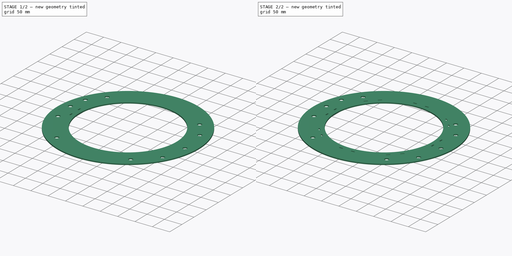
[diagram: build sequence overview — one tinted view per stage of 2, left to right]
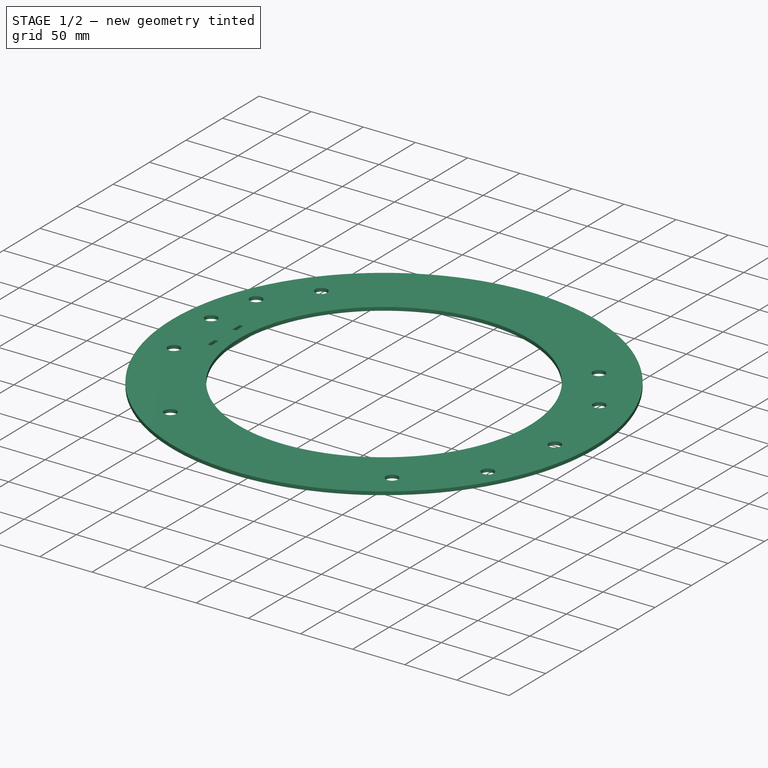
[diagram: stage 1 of 2 — iso view after this stage's code; geometry added in this stage tinted green]
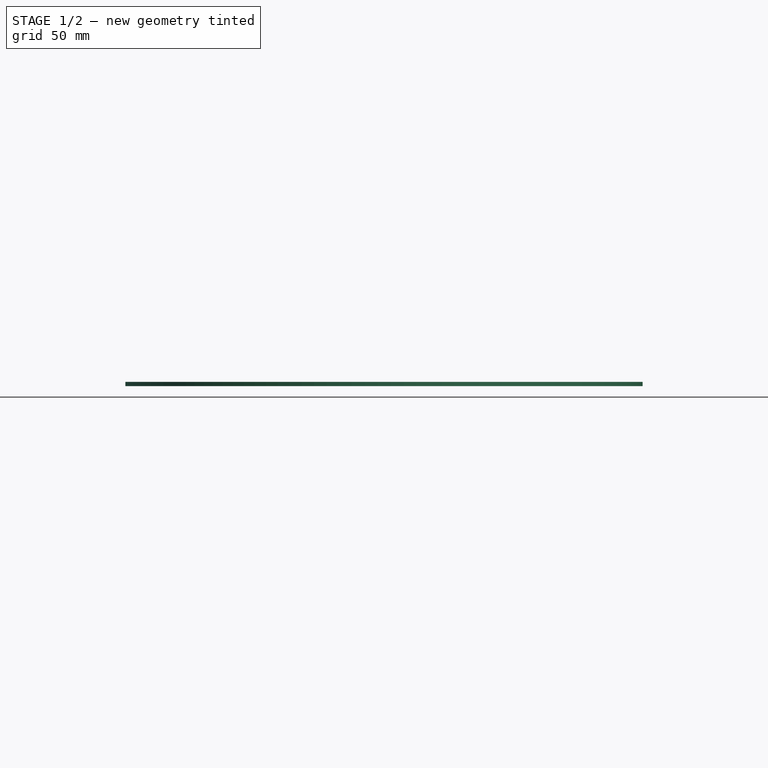
[diagram: stage 1 of 2 — front view after this stage's code; geometry added in this stage tinted green]
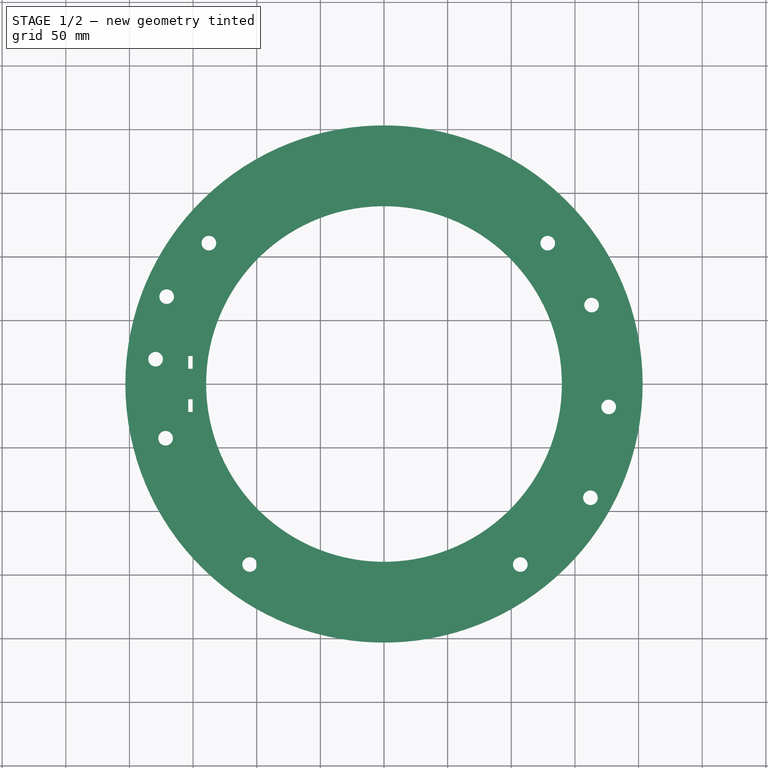
[diagram: stage 1 of 2 — top view after this stage's code; geometry added in this stage tinted green]
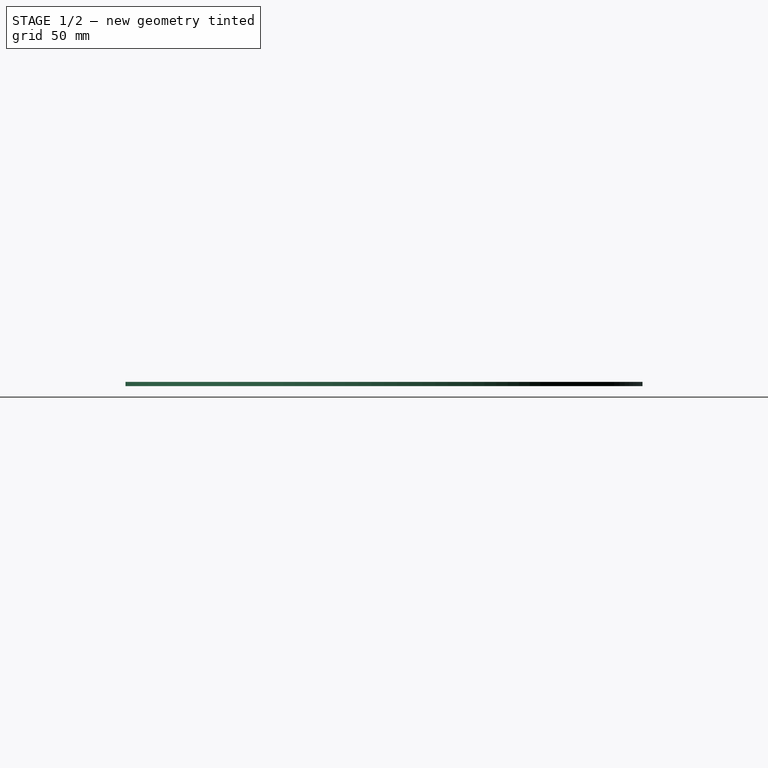
[diagram: stage 1 of 2 — right view after this stage's code; geometry added in this stage tinted green]
FCSTD DOCUMENT  (FreeCAD 0.21R33771 (Git))
Label: SF_TY755_TRANS_FACEPLATE
License: All rights reserved
LicenseURL: http://en.wikipedia.org/wiki/All_rights_reserved
objects: Sketcher::SketchObject×4, PartDesign::CoordinateSystem×2, Part::Feature×1, PartDesign::Pad×1, PartDesign::Pocket×1, PartDesign::PolarPattern×1, PartDesign::Plane×1, PartDesign::Body×1, PartDesign::Line×1, App::Part×1
note: 15 computed .brp shape members not serialized (recipe doc carries the construction recipe); baked Part::Feature solids carry a one-line shape summary decoded from their .brp

FEATURE [Part::Feature] Part__Feature126  label="plate33"
  shape: bbox 408 x 387 x 80.02 mm, 236 faces, 3 solids (baked)
FEATURE [Sketcher::SketchObject] Sketch  label="IMPORTED_BP"
  FullyConstrained = true
  MapMode = 2
  Support = -> [XY_Plane]
  sketch-geometry (10):
    g0: Circle CenterX=-137.568 CenterY=110.686 CenterZ=0 NormalX=0 NormalY=0 NormalZ=1 AngleXU=0 Radius=5.75
    g1: Circle CenterX=-170.744 CenterY=68.6485 CenterZ=0 NormalX=0 NormalY=0 NormalZ=1 AngleXU=0 Radius=5.75
    g2: Circle CenterX=-179.453 CenterY=19.5185 CenterZ=0 NormalX=0 NormalY=0 NormalZ=1 AngleXU=0 Radius=5.75
    g3: Circle CenterX=-171.59 CenterY=-42.6229 CenterZ=0 NormalX=0 NormalY=0 NormalZ=1 AngleXU=0 Radius=5.75
    g4: Circle CenterX=-105.528 CenterY=-141.847 CenterZ=0 NormalX=0 NormalY=0 NormalZ=1 AngleXU=0 Radius=5.75
    g5: Circle CenterX=107.083 CenterY=-141.845 CenterZ=0 NormalX=0 NormalY=0 NormalZ=1 AngleXU=0 Radius=5.75
    g6: Circle CenterX=162.173 CenterY=-89.3634 CenterZ=0 NormalX=0 NormalY=0 NormalZ=1 AngleXU=0 Radius=5.75
    g7: Circle CenterX=176.51 CenterY=-18.0151 CenterZ=0 NormalX=0 NormalY=0 NormalZ=1 AngleXU=0 Radius=5.75
    g8: Circle CenterX=163.102 CenterY=62.0411 CenterZ=0 NormalX=0 NormalY=0 NormalZ=1 AngleXU=0 Radius=5.75
    g9: Circle CenterX=128.64 CenterY=110.662 CenterZ=0 NormalX=0 NormalY=0 NormalZ=1 AngleXU=0 Radius=5.75
  constraints (20):
    c: Diameter(g0) = 11.5
    c: Equal(g0,g1)
    c: Equal(g1,g2)
    c: Equal(g2,g3)
    c: Equal(g3,g4)
    c: Equal(g4,g5)
    c: Equal(g5,g6)
    c: Equal(g6,g7)
    c: Equal(g7,g8)
    c: Equal(g8,g9)
    c: Block(g6)
    c: Block(g0)
    c: Block(g1)
    c: Block(g2)
    c: Block(g3)
    c: Block(g4)
    c: Block(g5)
    c: Block(g7)
    c: Block(g8)
    c: Block(g9)
FEATURE [Sketcher::SketchObject] Sketch001  label="SF_Trans_BP"
  FullyConstrained = false
  MapMode = 5
  Support = -> [XY_Plane]
  expr: Constraints[2] = 16 in
  expr: Constraints[33] = 3.5 * 3.5
  expr: Constraints[9] = Sketch.Constraints[0]
  sketch-geometry (16):
    g0: Circle CenterX=0 CenterY=0 CenterZ=0 NormalX=0 NormalY=0 NormalZ=1 AngleXU=0 Radius=127
    g1: Circle CenterX=0 CenterY=0 CenterZ=0 NormalX=0 NormalY=0 NormalZ=1 AngleXU=0 Radius=203.2
    g2: Circle CenterX=0 CenterY=0 CenterZ=0 NormalX=0 NormalY=0 NormalZ=1 AngleXU=0 Radius=139.75
    g3: LineSegment StartX=-203.2 StartY=0 StartZ=0 EndX=-148.2 EndY=0 EndZ=0
    g4: LineSegment StartX=-148.2 StartY=0 StartZ=0 EndX=-139.75 EndY=0 EndZ=0
    g5: Circle CenterX=-137.568 CenterY=110.686 CenterZ=0 NormalX=0 NormalY=0 NormalZ=1 AngleXU=0 Radius=5.75
    g6: Circle CenterX=-170.744 CenterY=68.6485 CenterZ=0 NormalX=0 NormalY=0 NormalZ=1 AngleXU=0 Radius=5.75
    g7: Circle CenterX=-179.453 CenterY=19.5185 CenterZ=0 NormalX=0 NormalY=0 NormalZ=1 AngleXU=0 Radius=5.75
    g8: Circle CenterX=-171.59 CenterY=-42.6229 CenterZ=0 NormalX=0 NormalY=0 NormalZ=1 AngleXU=0 Radius=5.75
    g9: Circle CenterX=-105.528 CenterY=-141.847 CenterZ=0 NormalX=0 NormalY=0 NormalZ=1 AngleXU=0 Radius=5.75
    g10: Circle CenterX=107.083 CenterY=-141.845 CenterZ=0 NormalX=0 NormalY=0 NormalZ=1 AngleXU=0 Radius=5.75
    g11: Circle CenterX=162.173 CenterY=-89.3634 CenterZ=0 NormalX=0 NormalY=0 NormalZ=1 AngleXU=0 Radius=5.75
    g12: Circle CenterX=176.51 CenterY=-18.0151 CenterZ=0 NormalX=0 NormalY=0 NormalZ=1 AngleXU=0 Radius=5.75
    g13: Circle CenterX=163.102 CenterY=62.0411 CenterZ=0 NormalX=0 NormalY=0 NormalZ=1 AngleXU=0 Radius=5.75
    g14: Circle CenterX=128.64 CenterY=110.662 CenterZ=0 NormalX=0 NormalY=0 NormalZ=1 AngleXU=0 Radius=5.75
    g15: GeomPoint X=-152 Y=0 Z=0
  constraints (34):
    c: Coincident(g0,g-1)
    c: Diameter(g0) = 254
    c: Diameter(g1) = 406.4
    c: Coincident(g1,g0)
    c: PointOnObject(g3,g1)
    c: PointOnObject(g3,g-1)
    c: DistanceX(g3,g3) = 55
    c: Coincident(g4,g3)
    c: Horizontal(g4)
    c: Diameter(g5) = 11.5
    c: Equal(g5,g6)
    c: Equal(g6,g7)
    c: Equal(g7,g8)
    c: Equal(g8,g9)
    c: Equal(g9,g10)
    c: Equal(g10,g11)
    c: Equal(g11,g12)
    c: Equal(g12,g13)
    c: Equal(g13,g14)
    c: Block(g11)
    c: Block(g5)
    c: Block(g6)
    c: Block(g7)
    c: Block(g8)
    c: Block(g9)
    c: Block(g10)
    c: Block(g12)
    c: Block(g13)
    c: Block(g14)
    c: DistanceX(g15,g1) = 152  'TabRadialPos'
    c: PointOnObject(g4,g2)
    c: PointOnObject(g3,g-1)
    c: Coincident(g2,g1)
    c: DistanceX(g15,g4) = 12.25
FEATURE [PartDesign::Pad] Pad
  Direction = (0,0,1)
  Length = 3.25
  Length2 = 10
  Profile = -> Sketch001
  ReferenceAxis = -> Sketch001 [N_Axis]
  Type = 0
  expr: Length = 3.25
FEATURE [PartDesign::CoordinateSystem] LCS_1
  AttacherType = Attacher::AttachEngine3D
  MapMode = 5
  Support = -> [XY_Plane]
FEATURE [Sketcher::SketchObject] Sketch002  label="TabSlotsBase"
  FullyConstrained = true
  MapMode = 5
  Support = -> [XY_Plane]
  expr: .Constraints.TRP = Sketch001.Constraints.TabRadialPos
  sketch-geometry (13):
    g0: LineSegment StartX=0 StartY=0 StartZ=0 EndX=-152 EndY=0 EndZ=0
    g1: LineSegment StartX=-152 StartY=0 StartZ=0 EndX=-152 EndY=17 EndZ=0
    g2: LineSegment StartX=-152 StartY=0 StartZ=0 EndX=-152 EndY=-17 EndZ=0
    g3: LineSegment StartX=-150.25 StartY=12 StartZ=0 EndX=-150.25 EndY=22 EndZ=0
    g4: LineSegment StartX=-150.25 StartY=22 StartZ=0 EndX=-153.75 EndY=22 EndZ=0
    g5: LineSegment StartX=-153.75 StartY=22 StartZ=0 EndX=-153.75 EndY=12 EndZ=0
    g6: LineSegment StartX=-153.75 StartY=12 StartZ=0 EndX=-150.25 EndY=12 EndZ=0
    g7: GeomPoint X=-152 Y=17 Z=0
    g8: LineSegment StartX=-150.25 StartY=-12 StartZ=0 EndX=-150.25 EndY=-22 EndZ=0
    g9: LineSegment StartX=-150.25 StartY=-22 StartZ=0 EndX=-153.75 EndY=-22 EndZ=0
    g10: LineSegment StartX=-153.75 StartY=-22 StartZ=0 EndX=-153.75 EndY=-12 EndZ=0
    g11: LineSegment StartX=-153.75 StartY=-12 StartZ=0 EndX=-150.25 EndY=-12 EndZ=0
    g12: GeomPoint X=-152 Y=-17 Z=0
  constraints (33):
    c: Coincident(g0,g-1)
    c: PointOnObject(g0,g-1)
    c: DistanceX(g0,g0) = 152  'TRP'
    c: Coincident(g1,g0)
    c: Vertical(g1)
    c: Coincident(g2,g0)
    c: Vertical(g2)
    c: DistanceY(g1,g1) = 17  'TabCntrOffset'
    c: Equal(g2,g1)
    c: Coincident(g3,g4)
    c: Coincident(g4,g5)
    c: Coincident(g5,g6)
    c: Coincident(g6,g3)
    c: Horizontal(g4)
    c: Horizontal(g6)
    c: Vertical(g3)
    c: Vertical(g5)
    c: Symmetric(g4,g3,g7)
    c: Coincident(g7,g1)
    c: Coincident(g8,g9)
    c: Coincident(g9,g10)
    c: Coincident(g10,g11)
    c: Coincident(g11,g8)
    c: Horizontal(g9)
    c: Horizontal(g11)
    c: Vertical(g8)
    c: Vertical(g10)
    c: Symmetric(g9,g8,g12)
    c: Coincident(g12,g2)
    c: Equal(g5,g10)
    c: Equal(g4,g11)
    c: DistanceY(g5,g5) = 10  'TabLength'
    c: DistanceX(g4,g4) = 3.5  'ThicknessClearance'
FEATURE [PartDesign::Pocket] Pocket  label="TabSlotBase"
  BaseFeature = -> Pad
  Direction = (0,0,-1)
  Length = 5
  Length2 = 5
  Midplane = true
  Profile = -> Sketch002
  ReferenceAxis = -> Sketch002 [N_Axis]
  Type = 1
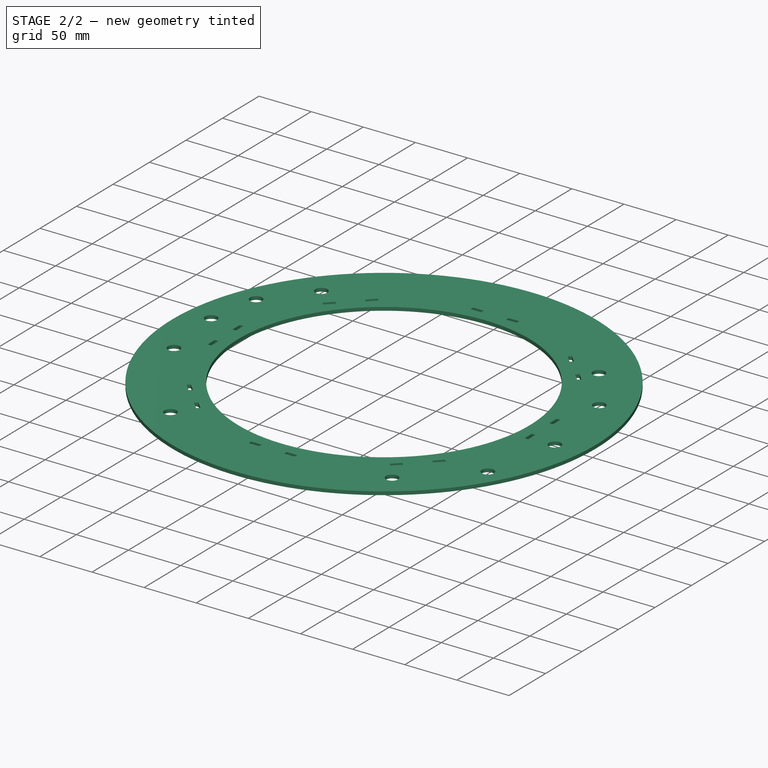
[diagram: stage 2 of 2 — iso view after this stage's code; geometry added in this stage tinted green]
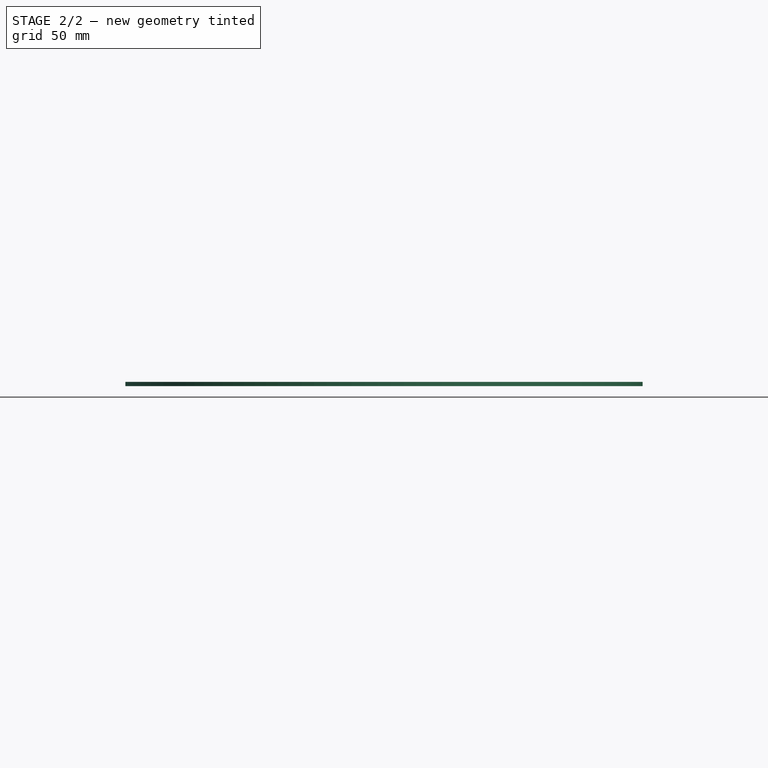
[diagram: stage 2 of 2 — front view after this stage's code; geometry added in this stage tinted green]
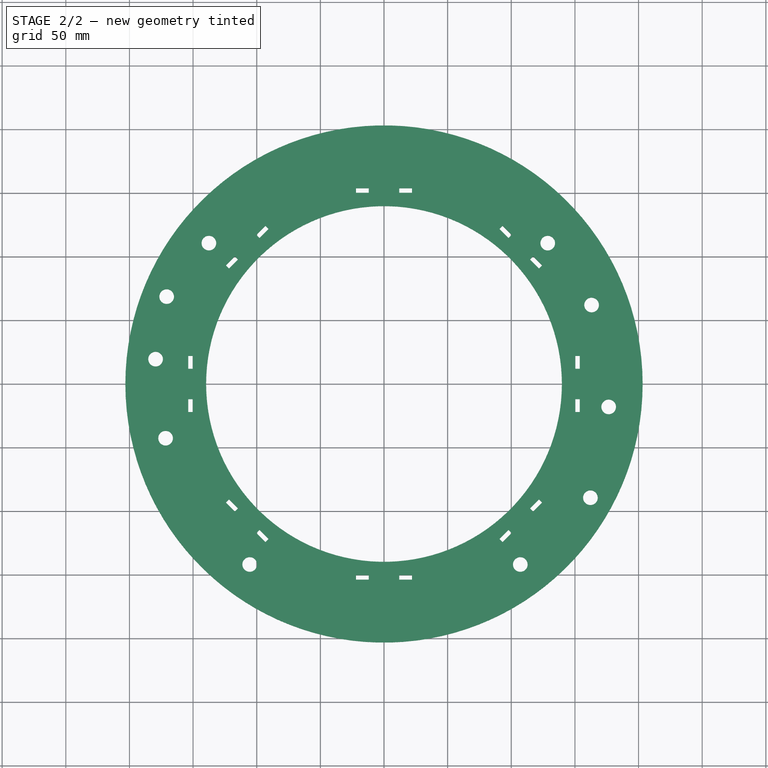
[diagram: stage 2 of 2 — top view after this stage's code; geometry added in this stage tinted green]
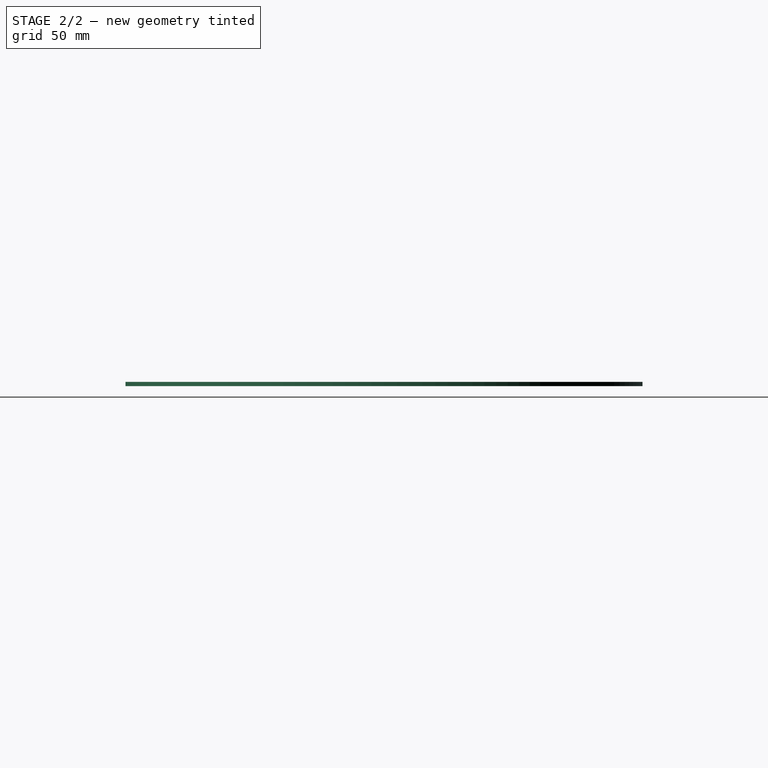
[diagram: stage 2 of 2 — right view after this stage's code; geometry added in this stage tinted green]
FEATURE [PartDesign::PolarPattern] PolarPattern  label="TabSlotPattern"
  Angle = 360
  Axis = -> Sketch002 [N_Axis]
  BaseFeature = -> Pocket
  Occurrences = 8
  Originals = -> [Pocket]
FEATURE [PartDesign::CoordinateSystem] LCS_Origin
  AttacherType = Attacher::AttachEngine3D
  MapMode = 2
  Support = -> [X_Axis001]
FEATURE [PartDesign::Plane] TXFP_SpacerSide
  Length = 100
  MapMode = 5
  Placement = pos=(0,0,0) rot=(1,0,0;3.14159rad)
  ResizeMode = 1
  Support = -> [PolarPattern]
  Width = 100
FEATURE [Sketcher::SketchObject] TabLCS
  FullyConstrained = true
  MapMode = 5
  Support = -> [XY_Plane]
  expr: .Constraints.TRP = Sketch002.Constraints.TRP
  expr: .Constraints.TabCntrOffset = Sketch002.Constraints.TabCntrOffset
  expr: .Constraints.TabLength = Sketch002.Constraints.TabLength
  expr: .Constraints.ThicknessClearance = Sketch002.Constraints.ThicknessClearance
  sketch-geometry (13):
    g0: LineSegment StartX=0 StartY=0 StartZ=0 EndX=-152 EndY=0 EndZ=0
    g1: LineSegment StartX=-152 StartY=0 StartZ=0 EndX=-152 EndY=17 EndZ=0
    g2: LineSegment StartX=-152 StartY=0 StartZ=0 EndX=-152 EndY=-17 EndZ=0
    g3: LineSegment StartX=-150.25 StartY=12 StartZ=0 EndX=-150.25 EndY=22 EndZ=0
    g4: LineSegment StartX=-150.25 StartY=22 StartZ=0 EndX=-153.75 EndY=22 EndZ=0
    g5: LineSegment StartX=-153.75 StartY=22 StartZ=0 EndX=-153.75 EndY=12 EndZ=0
    g6: LineSegment StartX=-153.75 StartY=12 StartZ=0 EndX=-150.25 EndY=12 EndZ=0
    g7: GeomPoint X=-152 Y=17 Z=0
    g8: LineSegment StartX=-150.25 StartY=-12 StartZ=0 EndX=-150.25 EndY=-22 EndZ=0
    g9: LineSegment StartX=-150.25 StartY=-22 StartZ=0 EndX=-153.75 EndY=-22 EndZ=0
    g10: LineSegment StartX=-153.75 StartY=-22 StartZ=0 EndX=-153.75 EndY=-12 EndZ=0
    g11: LineSegment StartX=-153.75 StartY=-12 StartZ=0 EndX=-150.25 EndY=-12 EndZ=0
    g12: GeomPoint X=-152 Y=-17 Z=0
  constraints (33):
    c: Coincident(g0,g-1)
    c: PointOnObject(g0,g-1)
    c: DistanceX(g0,g0) = 152  'TRP'
    c: Coincident(g1,g0)
    c: Vertical(g1)
    c: Coincident(g2,g0)
    c: Vertical(g2)
    c: DistanceY(g1,g1) = 17  'TabCntrOffset'
    c: Equal(g2,g1)
    c: Coincident(g3,g4)
    c: Coincident(g4,g5)
    c: Coincident(g5,g6)
    c: Coincident(g6,g3)
    c: Horizontal(g4)
    c: Horizontal(g6)
    c: Vertical(g3)
    c: Vertical(g5)
    c: Symmetric(g4,g3,g7)
    c: Coincident(g7,g1)
    c: Coincident(g8,g9)
    c: Coincident(g9,g10)
    c: Coincident(g10,g11)
    c: Coincident(g11,g8)
    c: Horizontal(g9)
    c: Horizontal(g11)
    c: Vertical(g8)
    c: Vertical(g10)
    c: Symmetric(g9,g8,g12)
    c: Coincident(g12,g2)
    c: Equal(g5,g10)
    c: Equal(g4,g11)
    c: DistanceY(g5,g5) = 10  'TabLength'
    c: DistanceX(g4,g4) = 3.5  'ThicknessClearance'
FEATURE [PartDesign::Body] Body  label="TX_Faceplate"
  Group = -> [Sketch,Sketch001,Pad,LCS_1,Sketch002,Pocket,PolarPattern,TabLCS]
  Origin = -> Origin
  Tip = -> PolarPattern
FEATURE [PartDesign::Line] TabSlotCL
  AttacherType = Attacher::AttachEngineLine
  Length = 200
  MapMode = 46
  Placement = pos=(-152,17,0) rot=(1,0,0;3.14159rad)
  ResizeMode = 1
  Support = -> [TabLCS,PolarPattern]
FEATURE [App::Part] TXFP
  Group = -> [LCS_Origin,Body,TXFP_SpacerSide,TabSlotCL]
  Origin = -> Origin001
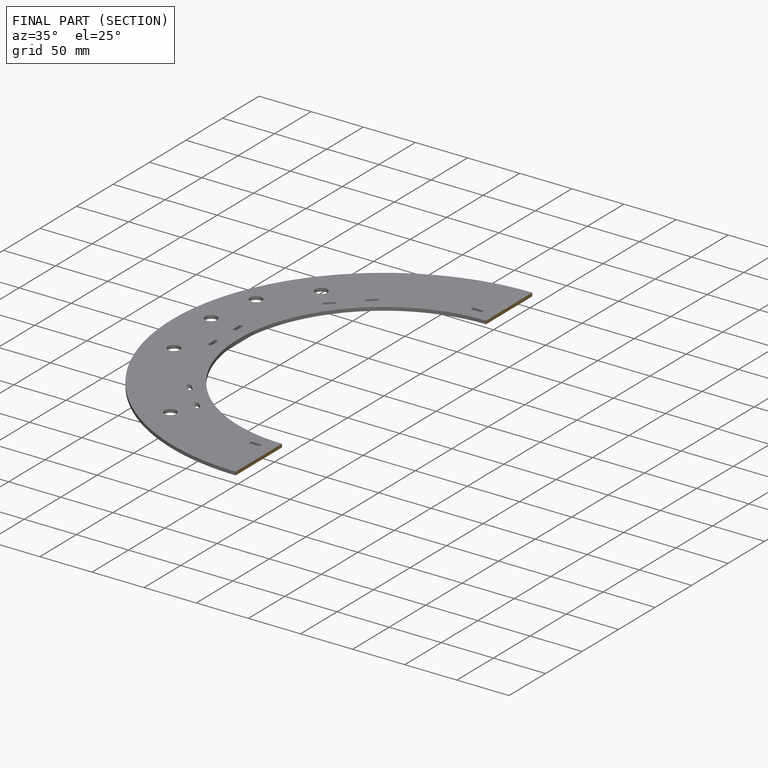
[diagram: finished part — half-section view (interior)]
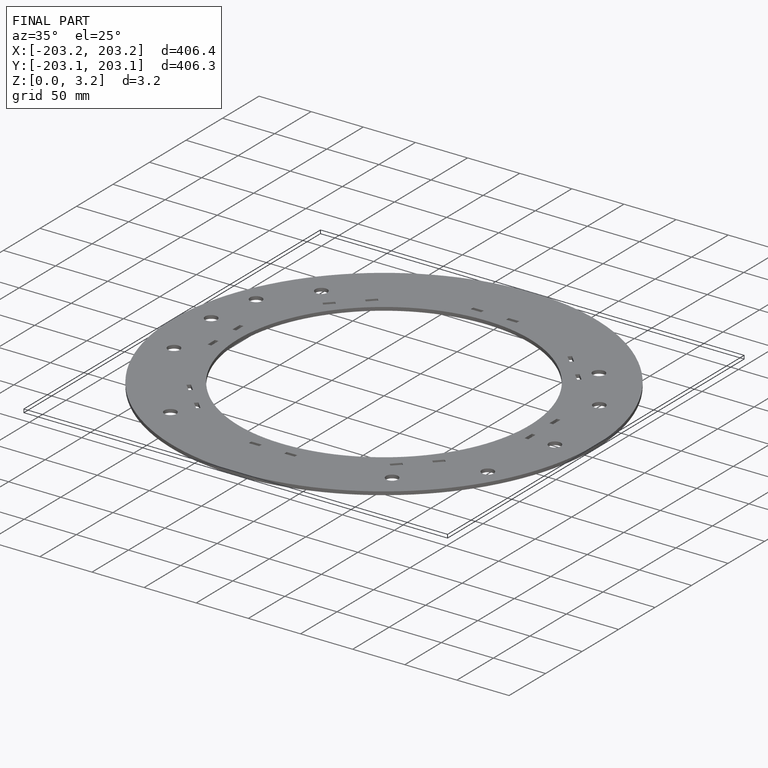
[diagram: finished part — iso view with bounding-box wireframe]
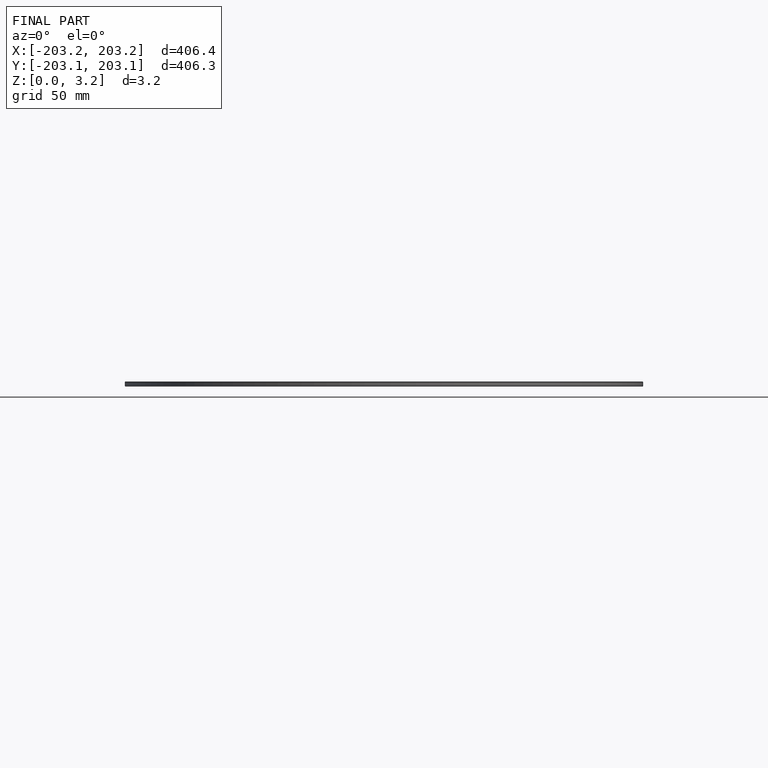
[diagram: finished part — front view with bounding-box wireframe]
